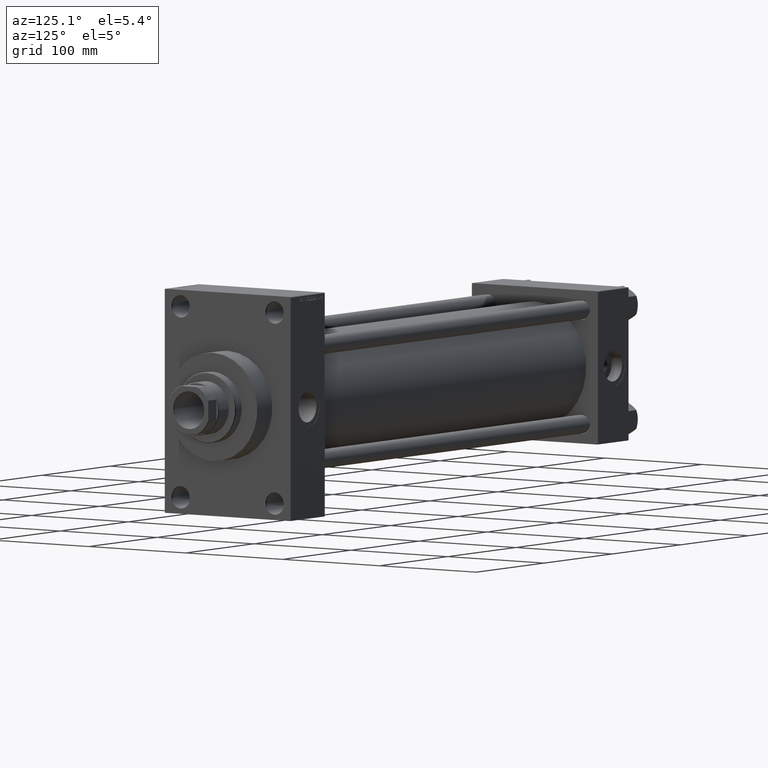
[diagram: clean part render]
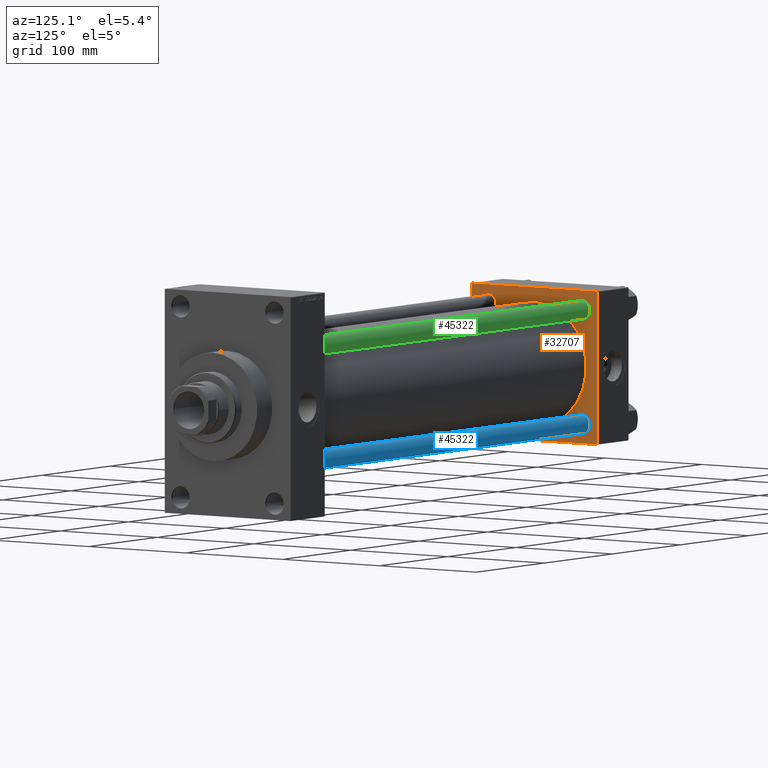
[diagram: same view with three faces highlighted in distinct colors, each labeled with its STEP entity id]
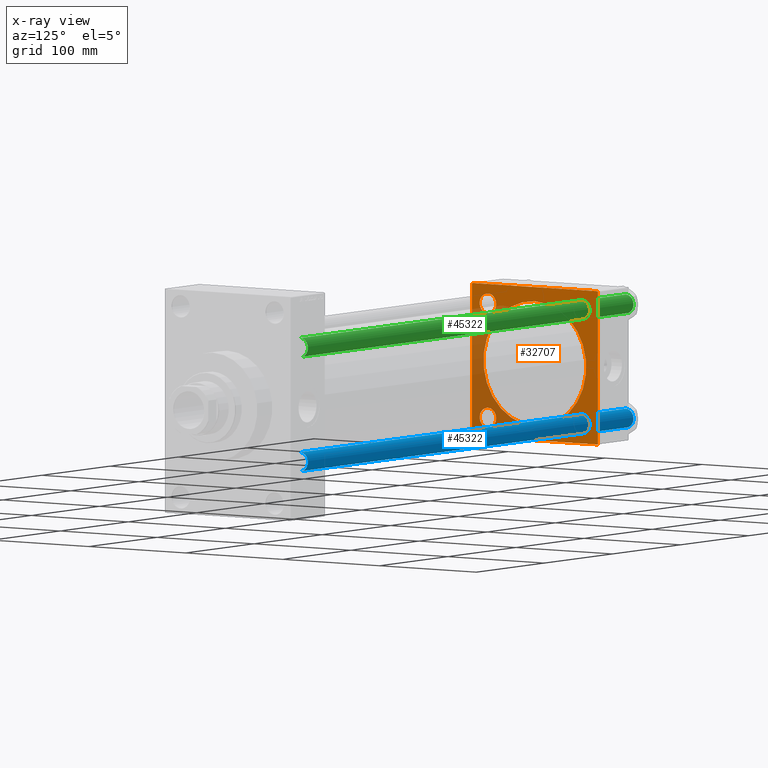
[diagram: x-ray of the same camera — body ghosted, the three highlighted faces saturated]
A machine part, auxiliary view with three faces highlighted in distinct colors.
The next image is the same camera in x-ray (body ghosted, the three faces saturated) — at least one of them is partly hidden behind the body in this view.
Their STEP definitions:

[orange] entity #32707 — the highlighted planar face has unit normal (-1, 0, 0).
#637 = EDGE_CURVE ( 'NONE', #34777, #47490, #22133, .T. ) ;
#932 = AXIS2_PLACEMENT_3D ( 'NONE', #30709, #16483, #41106 ) ;
#1326 = CARTESIAN_POINT ( 'NONE',  ( 45.00000000000000000, 64.49999999999997158, 65.00000000000001421 ) ) ;
#1357 = EDGE_LOOP ( 'NONE', ( #46150, #20433 ) ) ;
#1377 = EDGE_LOOP ( 'NONE', ( #41995, #3883 ) ) ;
#1413 = FACE_BOUND ( 'NONE', #14216, .T. ) ;
#1706 = CARTESIAN_POINT ( 'NONE',  ( 45.00000000000000000, 65.00000000000000000, 64.49999999999998579 ) ) ;
#1914 = DIRECTION ( 'NONE',  ( -0.000000000000000000, -0.7071067811865672237, -0.7071067811865279218 ) ) ;
#2478 = CARTESIAN_POINT ( 'NONE',  ( 45.00000000000000000, 48.44999999999999574, 48.44999999999999574 ) ) ;
#2718 = CARTESIAN_POINT ( 'NONE',  ( 45.00000000000000000, -48.44999999999998153, -48.45000000000000995 ) ) ;
#2747 = EDGE_CURVE ( 'NONE', #20457, #19839, #37102, .T. ) ;
#2842 = AXIS2_PLACEMENT_3D ( 'NONE', #2718, #25378, #7063 ) ;
#3242 = VECTOR ( 'NONE', #12893, 1000.000000000000114 ) ;
#3705 = LINE ( 'NONE', #21304, #45723 ) ;
#3883 = ORIENTED_EDGE ( 'NONE', *, *, #5472, .F. ) ;
#3884 = CARTESIAN_POINT ( 'NONE',  ( 45.00000000000000000, -64.49999999999994316, -65.00000000000001421 ) ) ;
#3917 = AXIS2_PLACEMENT_3D ( 'NONE', #20228, #26978, #13002 ) ;
#4502 = DIRECTION ( 'NONE',  ( 0.000000000000000000, 0.000000000000000000, 1.000000000000000000 ) ) ;
#5472 = EDGE_CURVE ( 'NONE', #27550, #28979, #9499, .T. ) ;
#5891 = VERTEX_POINT ( 'NONE', #37841 ) ;
#6268 = AXIS2_PLACEMENT_3D ( 'NONE', #46914, #42586, #10279 ) ;
#6498 = AXIS2_PLACEMENT_3D ( 'NONE', #39335, #43195, #25105 ) ;
#6953 = CARTESIAN_POINT ( 'NONE',  ( 45.00000000000000000, 64.49999999999997158, -64.99999999999998579 ) ) ;
#7058 = DIRECTION ( 'NONE',  ( 0.000000000000000000, 0.000000000000000000, -1.000000000000000000 ) ) ;
#7063 = DIRECTION ( 'NONE',  ( 0.000000000000000000, 0.000000000000000000, 1.000000000000000000 ) ) ;
#7328 = DIRECTION ( 'NONE',  ( -0.000000000000000000, 0.7071067811865474617, 0.7071067811865474617 ) ) ;
#7611 = EDGE_CURVE ( 'NONE', #39804, #14372, #38085, .T. ) ;
#7650 = AXIS2_PLACEMENT_3D ( 'NONE', #33107, #47580, #25634 ) ;
#7904 = DIRECTION ( 'NONE',  ( 0.000000000000000000, 0.000000000000000000, 1.000000000000000000 ) ) ;
#8124 = DIRECTION ( 'NONE',  ( -1.000000000000000000, 0.000000000000000000, -0.000000000000000000 ) ) ;
#8151 = EDGE_CURVE ( 'NONE', #34777, #31712, #3705, .T. ) ;
#8165 = AXIS2_PLACEMENT_3D ( 'NONE', #37827, #30811, #45531 ) ;
#8355 = AXIS2_PLACEMENT_3D ( 'NONE', #2478, #8124, #4502 ) ;
#8379 = EDGE_CURVE ( 'NONE', #28979, #27550, #21911, .T. ) ;
#8421 = FACE_BOUND ( 'NONE', #40571, .T. ) ;
#8491 = VERTEX_POINT ( 'NONE', #37157 ) ;
#9423 = ORIENTED_EDGE ( 'NONE', *, *, #13048, .T. ) ;
#9499 = CIRCLE ( 'NONE', #27970, 53.00000000000000711 ) ;
#10031 = CARTESIAN_POINT ( 'NONE',  ( 44.99999999999998579, -2.602085213965210642E-15, 0.000000000000000000 ) ) ;
#10268 = DIRECTION ( 'NONE',  ( 1.000000000000000000, -0.000000000000000000, 0.000000000000000000 ) ) ;
#10279 = DIRECTION ( 'NONE',  ( 0.000000000000000000, 0.000000000000000000, 1.000000000000000000 ) ) ;
#10381 = LINE ( 'NONE', #25321, #40971 ) ;
#10859 = DIRECTION ( 'NONE',  ( 0.000000000000000000, -1.000000000000000000, -2.135044278125300850E-16 ) ) ;
#11061 = DIRECTION ( 'NONE',  ( 0.000000000000000000, -1.000000000000000000, -2.135044278125300850E-16 ) ) ;
#11285 = CARTESIAN_POINT ( 'NONE',  ( 45.00000000000000000, -48.44999999999998153, -48.45000000000000995 ) ) ;
#11621 = ORIENTED_EDGE ( 'NONE', *, *, #44794, .T. ) ;
#12494 = VERTEX_POINT ( 'NONE', #40543 ) ;
#12849 = LINE ( 'NONE', #42733, #28381 ) ;
#12893 = DIRECTION ( 'NONE',  ( 0.000000000000000000, -0.7071067811865474617, 0.7071067811865474617 ) ) ;
#13002 = DIRECTION ( 'NONE',  ( 0.000000000000000000, 0.000000000000000000, 1.000000000000000000 ) ) ;
#13048 = EDGE_CURVE ( 'NONE', #28891, #8491, #39372, .T. ) ;
#13108 = ORIENTED_EDGE ( 'NONE', *, *, #19687, .T. ) ;
#13990 = DIRECTION ( 'NONE',  ( 0.000000000000000000, 0.000000000000000000, -1.000000000000000000 ) ) ;
#14216 = EDGE_LOOP ( 'NONE', ( #40665, #31943 ) ) ;
#14372 = VERTEX_POINT ( 'NONE', #34831 ) ;
#15168 = CARTESIAN_POINT ( 'NONE',  ( 45.00000000000000000, -65.00000000000000000, -64.49999999999995737 ) ) ;
#15364 = DIRECTION ( 'NONE',  ( -1.000000000000000000, 0.000000000000000000, -0.000000000000000000 ) ) ;
#15455 = DIRECTION ( 'NONE',  ( -1.000000000000000000, 0.000000000000000000, -0.000000000000000000 ) ) ;
#16105 = FACE_BOUND ( 'NONE', #1377, .T. ) ;
#16483 = DIRECTION ( 'NONE',  ( -1.000000000000000000, 0.000000000000000000, -0.000000000000000000 ) ) ;
#16562 = EDGE_CURVE ( 'NONE', #22690, #32841, #23733, .T. ) ;
#18358 = ORIENTED_EDGE ( 'NONE', *, *, #8151, .T. ) ;
#18647 = EDGE_CURVE ( 'NONE', #19839, #20457, #27041, .T. ) ;
#19042 = AXIS2_PLACEMENT_3D ( 'NONE', #11285, #15364, #7904 ) ;
#19687 = EDGE_CURVE ( 'NONE', #32841, #39804, #10381, .T. ) ;
#19742 = FACE_BOUND ( 'NONE', #1357, .T. ) ;
#19792 = CARTESIAN_POINT ( 'NONE',  ( 45.00000000000000000, 48.44999999999999574, 56.95000000000000284 ) ) ;
#19837 = DIRECTION ( 'NONE',  ( 0.000000000000000000, 0.7071067811865474617, -0.7071067811865474617 ) ) ;
#19839 = VERTEX_POINT ( 'NONE', #36770 ) ;
#19971 = FACE_OUTER_BOUND ( 'NONE', #20413, .T. ) ;
#20228 = CARTESIAN_POINT ( 'NONE',  ( 45.00000000000000000, 48.44999999999999574, 48.44999999999999574 ) ) ;
#20413 = EDGE_LOOP ( 'NONE', ( #20772, #18358, #28479, #45877, #13108, #26922, #34463, #44084 ) ) ;
#20433 = ORIENTED_EDGE ( 'NONE', *, *, #18647, .T. ) ;
#20457 = VERTEX_POINT ( 'NONE', #20692 ) ;
#20692 = CARTESIAN_POINT ( 'NONE',  ( 45.00000000000000000, 48.44999999999999574, -56.95000000000000284 ) ) ;
#20772 = ORIENTED_EDGE ( 'NONE', *, *, #637, .F. ) ;
#21304 = CARTESIAN_POINT ( 'NONE',  ( 45.00000000000000000, 65.00000000000000000, -64.49999999999995737 ) ) ;
#21454 = CARTESIAN_POINT ( 'NONE',  ( 45.00000000000000000, 65.00000000000000000, 65.00000000000001421 ) ) ;
#21911 = CIRCLE ( 'NONE', #6498, 53.00000000000000711 ) ;
#22033 = ORIENTED_EDGE ( 'NONE', *, *, #35919, .T. ) ;
#22133 = LINE ( 'NONE', #37558, #30961 ) ;
#22187 = CIRCLE ( 'NONE', #8355, 8.500000000000007105 ) ;
#22216 = DIRECTION ( 'NONE',  ( 0.000000000000000000, 0.000000000000000000, 1.000000000000000000 ) ) ;
#22690 = VERTEX_POINT ( 'NONE', #1706 ) ;
#23111 = PLANE ( 'NONE',  #8165 ) ;
#23733 = LINE ( 'NONE', #1326, #3242 ) ;
#24105 = VERTEX_POINT ( 'NONE', #24700 ) ;
#24700 = CARTESIAN_POINT ( 'NONE',  ( 45.00000000000000000, -48.44999999999998153, 56.95000000000001705 ) ) ;
#25105 = DIRECTION ( 'NONE',  ( 0.000000000000000000, 0.000000000000000000, 1.000000000000000000 ) ) ;
#25321 = CARTESIAN_POINT ( 'NONE',  ( 45.00000000000000000, 65.00000000000000000, 65.00000000000001421 ) ) ;
#25378 = DIRECTION ( 'NONE',  ( -1.000000000000000000, 0.000000000000000000, -0.000000000000000000 ) ) ;
#25634 = DIRECTION ( 'NONE',  ( 0.000000000000000000, 0.000000000000000000, 1.000000000000000000 ) ) ;
#26488 = CARTESIAN_POINT ( 'NONE',  ( 45.00000000000000000, 65.00000000000000000, -64.49999999999995737 ) ) ;
#26698 = EDGE_CURVE ( 'NONE', #14372, #41482, #29228, .T. ) ;
#26922 = ORIENTED_EDGE ( 'NONE', *, *, #7611, .T. ) ;
#26978 = DIRECTION ( 'NONE',  ( -1.000000000000000000, 0.000000000000000000, -0.000000000000000000 ) ) ;
#27041 = CIRCLE ( 'NONE', #6268, 8.500000000000007105 ) ;
#27222 = CARTESIAN_POINT ( 'NONE',  ( 45.00000000000000000, -65.00000000000000000, 64.49999999999998579 ) ) ;
#27258 = CARTESIAN_POINT ( 'NONE',  ( 45.00000000000000000, 64.49999999999997158, 65.00000000000001421 ) ) ;
#27486 = CIRCLE ( 'NONE', #19042, 8.500000000000007105 ) ;
#27550 = VERTEX_POINT ( 'NONE', #33366 ) ;
#27970 = AXIS2_PLACEMENT_3D ( 'NONE', #10031, #10268, #47386 ) ;
#28381 = VECTOR ( 'NONE', #19837, 1000.000000000000114 ) ;
#28406 = CIRCLE ( 'NONE', #7650, 8.500000000000007105 ) ;
#28479 = ORIENTED_EDGE ( 'NONE', *, *, #33729, .F. ) ;
#28891 = VERTEX_POINT ( 'NONE', #19792 ) ;
#28979 = VERTEX_POINT ( 'NONE', #38346 ) ;
#29228 = LINE ( 'NONE', #35983, #30389 ) ;
#29787 = EDGE_LOOP ( 'NONE', ( #22033, #35496 ) ) ;
#30348 = VECTOR ( 'NONE', #1914, 1000.000000000000000 ) ;
#30389 = VECTOR ( 'NONE', #7058, 1000.000000000000000 ) ;
#30709 = CARTESIAN_POINT ( 'NONE',  ( 45.00000000000000000, 48.44999999999999574, -48.44999999999999574 ) ) ;
#30811 = DIRECTION ( 'NONE',  ( -1.000000000000000000, 0.000000000000000000, -0.000000000000000000 ) ) ;
#30961 = VECTOR ( 'NONE', #11061, 1000.000000000000000 ) ;
#31712 = VERTEX_POINT ( 'NONE', #26488 ) ;
#31754 = CARTESIAN_POINT ( 'NONE',  ( 45.00000000000000000, -64.49999999999997158, 64.99999999999998579 ) ) ;
#31943 = ORIENTED_EDGE ( 'NONE', *, *, #43241, .T. ) ;
#32707 = ADVANCED_FACE ( 'NONE', ( #34435, #19742, #1413, #8421, #16105, #19971 ), #23111, .F. ) ;
#32841 = VERTEX_POINT ( 'NONE', #27258 ) ;
#33107 = CARTESIAN_POINT ( 'NONE',  ( 45.00000000000000000, -48.44999999999998153, 48.45000000000000995 ) ) ;
#33366 = CARTESIAN_POINT ( 'NONE',  ( 44.99999999999998579, 3.888542821515760888E-15, -53.00000000000000711 ) ) ;
#33543 = CARTESIAN_POINT ( 'NONE',  ( 45.00000000000000000, -48.44999999999998153, 48.45000000000000995 ) ) ;
#33729 = EDGE_CURVE ( 'NONE', #22690, #31712, #47015, .T. ) ;
#34331 = VECTOR ( 'NONE', #13990, 1000.000000000000000 ) ;
#34435 = FACE_BOUND ( 'NONE', #29787, .T. ) ;
#34463 = ORIENTED_EDGE ( 'NONE', *, *, #26698, .T. ) ;
#34777 = VERTEX_POINT ( 'NONE', #6953 ) ;
#34831 = CARTESIAN_POINT ( 'NONE',  ( 45.00000000000000000, -65.00000000000000000, 64.49999999999998579 ) ) ;
#35496 = ORIENTED_EDGE ( 'NONE', *, *, #36452, .T. ) ;
#35919 = EDGE_CURVE ( 'NONE', #5891, #12494, #46770, .T. ) ;
#35983 = CARTESIAN_POINT ( 'NONE',  ( 45.00000000000000000, -65.00000000000000000, 64.99999999999998579 ) ) ;
#36452 = EDGE_CURVE ( 'NONE', #12494, #5891, #27486, .T. ) ;
#36770 = CARTESIAN_POINT ( 'NONE',  ( 45.00000000000000000, 48.44999999999999574, -39.94999999999998863 ) ) ;
#37102 = CIRCLE ( 'NONE', #932, 8.500000000000007105 ) ;
#37157 = CARTESIAN_POINT ( 'NONE',  ( 45.00000000000000000, 48.44999999999999574, 39.94999999999998863 ) ) ;
#37558 = CARTESIAN_POINT ( 'NONE',  ( 45.00000000000000000, 65.00000000000000000, -64.99999999999998579 ) ) ;
#37827 = CARTESIAN_POINT ( 'NONE',  ( 45.00000000000000000, 0.000000000000000000, 0.000000000000000000 ) ) ;
#37841 = CARTESIAN_POINT ( 'NONE',  ( 45.00000000000000000, -48.44999999999998153, -56.95000000000001705 ) ) ;
#38085 = LINE ( 'NONE', #27222, #30348 ) ;
#38346 = CARTESIAN_POINT ( 'NONE',  ( 44.99999999999998579, -2.602085213965210642E-15, 53.00000000000000711 ) ) ;
#39335 = CARTESIAN_POINT ( 'NONE',  ( 44.99999999999998579, -2.602085213965210642E-15, 0.000000000000000000 ) ) ;
#39372 = CIRCLE ( 'NONE', #3917, 8.500000000000007105 ) ;
#39561 = EDGE_CURVE ( 'NONE', #41482, #47490, #12849, .T. ) ;
#39804 = VERTEX_POINT ( 'NONE', #31754 ) ;
#40543 = CARTESIAN_POINT ( 'NONE',  ( 45.00000000000000000, -48.44999999999998153, -39.95000000000000284 ) ) ;
#40571 = EDGE_LOOP ( 'NONE', ( #11621, #9423 ) ) ;
#40665 = ORIENTED_EDGE ( 'NONE', *, *, #47062, .T. ) ;
#40971 = VECTOR ( 'NONE', #10859, 1000.000000000000000 ) ;
#41060 = VERTEX_POINT ( 'NONE', #42969 ) ;
#41106 = DIRECTION ( 'NONE',  ( 0.000000000000000000, 0.000000000000000000, 1.000000000000000000 ) ) ;
#41421 = AXIS2_PLACEMENT_3D ( 'NONE', #33543, #15455, #22216 ) ;
#41482 = VERTEX_POINT ( 'NONE', #15168 ) ;
#41995 = ORIENTED_EDGE ( 'NONE', *, *, #8379, .F. ) ;
#42586 = DIRECTION ( 'NONE',  ( -1.000000000000000000, 0.000000000000000000, -0.000000000000000000 ) ) ;
#42733 = CARTESIAN_POINT ( 'NONE',  ( 45.00000000000000000, -64.49999999999994316, -65.00000000000001421 ) ) ;
#42969 = CARTESIAN_POINT ( 'NONE',  ( 45.00000000000000000, -48.44999999999998153, 39.95000000000000284 ) ) ;
#43195 = DIRECTION ( 'NONE',  ( 1.000000000000000000, -0.000000000000000000, 0.000000000000000000 ) ) ;
#43241 = EDGE_CURVE ( 'NONE', #24105, #41060, #46035, .T. ) ;
#44084 = ORIENTED_EDGE ( 'NONE', *, *, #39561, .T. ) ;
#44794 = EDGE_CURVE ( 'NONE', #8491, #28891, #22187, .T. ) ;
#45531 = DIRECTION ( 'NONE',  ( -0.000000000000000000, 0.000000000000000000, 1.000000000000000000 ) ) ;
#45723 = VECTOR ( 'NONE', #7328, 1000.000000000000114 ) ;
#45877 = ORIENTED_EDGE ( 'NONE', *, *, #16562, .T. ) ;
#46035 = CIRCLE ( 'NONE', #41421, 8.500000000000007105 ) ;
#46150 = ORIENTED_EDGE ( 'NONE', *, *, #2747, .T. ) ;
#46770 = CIRCLE ( 'NONE', #2842, 8.500000000000007105 ) ;
#46914 = CARTESIAN_POINT ( 'NONE',  ( 45.00000000000000000, 48.44999999999999574, -48.44999999999999574 ) ) ;
#47015 = LINE ( 'NONE', #21454, #34331 ) ;
#47062 = EDGE_CURVE ( 'NONE', #41060, #24105, #28406, .T. ) ;
#47386 = DIRECTION ( 'NONE',  ( 0.000000000000000000, 0.000000000000000000, 1.000000000000000000 ) ) ;
#47490 = VERTEX_POINT ( 'NONE', #3884 ) ;
#47580 = DIRECTION ( 'NONE',  ( -1.000000000000000000, 0.000000000000000000, -0.000000000000000000 ) ) ;

[blue] entity #45322 — the highlighted cylindrical surface (edge-blend (fillet) strip) has radius 8 mm, axis along (-1, -0, 0).
#2197 = ORIENTED_EDGE ( 'NONE', *, *, #9953, .T. ) ;
#3674 = VERTEX_POINT ( 'NONE', #8795 ) ;
#4866 = CIRCLE ( 'NONE', #46430, 8.000000000000000000 ) ;
#5034 = DIRECTION ( 'NONE',  ( -0.000000000000000000, -0.000000000000000000, -1.000000000000000000 ) ) ;
#5969 = DIRECTION ( 'NONE',  ( -0.000000000000000000, -0.000000000000000000, -1.000000000000000000 ) ) ;
#6754 = VERTEX_POINT ( 'NONE', #20762 ) ;
#6929 = DIRECTION ( 'NONE',  ( -0.000000000000000000, -0.000000000000000000, -1.000000000000000000 ) ) ;
#7550 = DIRECTION ( 'NONE',  ( -0.000000000000000000, -0.000000000000000000, 1.000000000000000000 ) ) ;
#7905 = AXIS2_PLACEMENT_3D ( 'NONE', #30427, #41989, #27272 ) ;
#8795 = CARTESIAN_POINT ( 'NONE',  ( 8.000000000000000000, 9.797174393178825657E-16, 0.5000000000000004441 ) ) ;
#9636 = VECTOR ( 'NONE', #6929, 1000.000000000000000 ) ;
#9953 = EDGE_CURVE ( 'NONE', #35859, #3674, #10068, .T. ) ;
#10068 = LINE ( 'NONE', #18013, #9636 ) ;
#11890 = VERTEX_POINT ( 'NONE', #23507 ) ;
#14666 = ORIENTED_EDGE ( 'NONE', *, *, #23380, .T. ) ;
#15012 = CARTESIAN_POINT ( 'NONE',  ( 0.000000000000000000, 0.000000000000000000, 0.5000000000000004441 ) ) ;
#16340 = CIRCLE ( 'NONE', #7905, 8.000000000000000000 ) ;
#17030 = ORIENTED_EDGE ( 'NONE', *, *, #20987, .T. ) ;
#18013 = CARTESIAN_POINT ( 'NONE',  ( 8.000000000000000000, 9.797174393178825657E-16, 479.0000000000000000 ) ) ;
#18873 = DIRECTION ( 'NONE',  ( 1.000000000000000000, 0.000000000000000000, 0.000000000000000000 ) ) ;
#20762 = CARTESIAN_POINT ( 'NONE',  ( -8.000000000000000000, 0.000000000000000000, 478.5000000000000000 ) ) ;
#20987 = EDGE_CURVE ( 'NONE', #6754, #35859, #16340, .T. ) ;
#23380 = EDGE_CURVE ( 'NONE', #3674, #11890, #4866, .T. ) ;
#23507 = CARTESIAN_POINT ( 'NONE',  ( -8.000000000000000000, 0.000000000000000000, 0.5000000000000004441 ) ) ;
#23574 = LINE ( 'NONE', #27425, #27580 ) ;
#27272 = DIRECTION ( 'NONE',  ( 1.000000000000000000, 0.000000000000000000, 0.000000000000000000 ) ) ;
#27425 = CARTESIAN_POINT ( 'NONE',  ( -8.000000000000000000, 0.000000000000000000, 479.0000000000000000 ) ) ;
#27580 = VECTOR ( 'NONE', #5969, 1000.000000000000000 ) ;
#30427 = CARTESIAN_POINT ( 'NONE',  ( 0.000000000000000000, 0.000000000000000000, 478.5000000000000000 ) ) ;
#34665 = DIRECTION ( 'NONE',  ( -1.000000000000000000, 0.000000000000000000, 0.000000000000000000 ) ) ;
#35859 = VERTEX_POINT ( 'NONE', #45891 ) ;
#36124 = EDGE_LOOP ( 'NONE', ( #17030, #2197, #14666, #46916 ) ) ;
#38292 = FACE_OUTER_BOUND ( 'NONE', #36124, .T. ) ;
#38772 = CYLINDRICAL_SURFACE ( 'NONE', #41498, 8.000000000000000000 ) ;
#41498 = AXIS2_PLACEMENT_3D ( 'NONE', #45303, #5034, #34665 ) ;
#41617 = EDGE_CURVE ( 'NONE', #6754, #11890, #23574, .T. ) ;
#41989 = DIRECTION ( 'NONE',  ( 0.000000000000000000, 0.000000000000000000, -1.000000000000000000 ) ) ;
#45303 = CARTESIAN_POINT ( 'NONE',  ( 0.000000000000000000, 0.000000000000000000, 479.0000000000000000 ) ) ;
#45322 = ADVANCED_FACE ( 'NONE', ( #38292 ), #38772, .T. ) ;
#45891 = CARTESIAN_POINT ( 'NONE',  ( 8.000000000000000000, 9.797174393178825657E-16, 478.5000000000000000 ) ) ;
#46430 = AXIS2_PLACEMENT_3D ( 'NONE', #15012, #7550, #18873 ) ;
#46916 = ORIENTED_EDGE ( 'NONE', *, *, #41617, .F. ) ;

[green] entity #45322 — the highlighted cylindrical surface (edge-blend (fillet) strip) has radius 8 mm, axis along (1, -0, -0).
#2197 = ORIENTED_EDGE ( 'NONE', *, *, #9953, .T. ) ;
#3674 = VERTEX_POINT ( 'NONE', #8795 ) ;
#4866 = CIRCLE ( 'NONE', #46430, 8.000000000000000000 ) ;
#5034 = DIRECTION ( 'NONE',  ( -0.000000000000000000, -0.000000000000000000, -1.000000000000000000 ) ) ;
#5969 = DIRECTION ( 'NONE',  ( -0.000000000000000000, -0.000000000000000000, -1.000000000000000000 ) ) ;
#6754 = VERTEX_POINT ( 'NONE', #20762 ) ;
#6929 = DIRECTION ( 'NONE',  ( -0.000000000000000000, -0.000000000000000000, -1.000000000000000000 ) ) ;
#7550 = DIRECTION ( 'NONE',  ( -0.000000000000000000, -0.000000000000000000, 1.000000000000000000 ) ) ;
#7905 = AXIS2_PLACEMENT_3D ( 'NONE', #30427, #41989, #27272 ) ;
#8795 = CARTESIAN_POINT ( 'NONE',  ( 8.000000000000000000, 9.797174393178825657E-16, 0.5000000000000004441 ) ) ;
#9636 = VECTOR ( 'NONE', #6929, 1000.000000000000000 ) ;
#9953 = EDGE_CURVE ( 'NONE', #35859, #3674, #10068, .T. ) ;
#10068 = LINE ( 'NONE', #18013, #9636 ) ;
#11890 = VERTEX_POINT ( 'NONE', #23507 ) ;
#14666 = ORIENTED_EDGE ( 'NONE', *, *, #23380, .T. ) ;
#15012 = CARTESIAN_POINT ( 'NONE',  ( 0.000000000000000000, 0.000000000000000000, 0.5000000000000004441 ) ) ;
#16340 = CIRCLE ( 'NONE', #7905, 8.000000000000000000 ) ;
#17030 = ORIENTED_EDGE ( 'NONE', *, *, #20987, .T. ) ;
#18013 = CARTESIAN_POINT ( 'NONE',  ( 8.000000000000000000, 9.797174393178825657E-16, 479.0000000000000000 ) ) ;
#18873 = DIRECTION ( 'NONE',  ( 1.000000000000000000, 0.000000000000000000, 0.000000000000000000 ) ) ;
#20762 = CARTESIAN_POINT ( 'NONE',  ( -8.000000000000000000, 0.000000000000000000, 478.5000000000000000 ) ) ;
#20987 = EDGE_CURVE ( 'NONE', #6754, #35859, #16340, .T. ) ;
#23380 = EDGE_CURVE ( 'NONE', #3674, #11890, #4866, .T. ) ;
#23507 = CARTESIAN_POINT ( 'NONE',  ( -8.000000000000000000, 0.000000000000000000, 0.5000000000000004441 ) ) ;
#23574 = LINE ( 'NONE', #27425, #27580 ) ;
#27272 = DIRECTION ( 'NONE',  ( 1.000000000000000000, 0.000000000000000000, 0.000000000000000000 ) ) ;
#27425 = CARTESIAN_POINT ( 'NONE',  ( -8.000000000000000000, 0.000000000000000000, 479.0000000000000000 ) ) ;
#27580 = VECTOR ( 'NONE', #5969, 1000.000000000000000 ) ;
#30427 = CARTESIAN_POINT ( 'NONE',  ( 0.000000000000000000, 0.000000000000000000, 478.5000000000000000 ) ) ;
#34665 = DIRECTION ( 'NONE',  ( -1.000000000000000000, 0.000000000000000000, 0.000000000000000000 ) ) ;
#35859 = VERTEX_POINT ( 'NONE', #45891 ) ;
#36124 = EDGE_LOOP ( 'NONE', ( #17030, #2197, #14666, #46916 ) ) ;
#38292 = FACE_OUTER_BOUND ( 'NONE', #36124, .T. ) ;
#38772 = CYLINDRICAL_SURFACE ( 'NONE', #41498, 8.000000000000000000 ) ;
#41498 = AXIS2_PLACEMENT_3D ( 'NONE', #45303, #5034, #34665 ) ;
#41617 = EDGE_CURVE ( 'NONE', #6754, #11890, #23574, .T. ) ;
#41989 = DIRECTION ( 'NONE',  ( 0.000000000000000000, 0.000000000000000000, -1.000000000000000000 ) ) ;
#45303 = CARTESIAN_POINT ( 'NONE',  ( 0.000000000000000000, 0.000000000000000000, 479.0000000000000000 ) ) ;
#45322 = ADVANCED_FACE ( 'NONE', ( #38292 ), #38772, .T. ) ;
#45891 = CARTESIAN_POINT ( 'NONE',  ( 8.000000000000000000, 9.797174393178825657E-16, 478.5000000000000000 ) ) ;
#46430 = AXIS2_PLACEMENT_3D ( 'NONE', #15012, #7550, #18873 ) ;
#46916 = ORIENTED_EDGE ( 'NONE', *, *, #41617, .F. ) ;